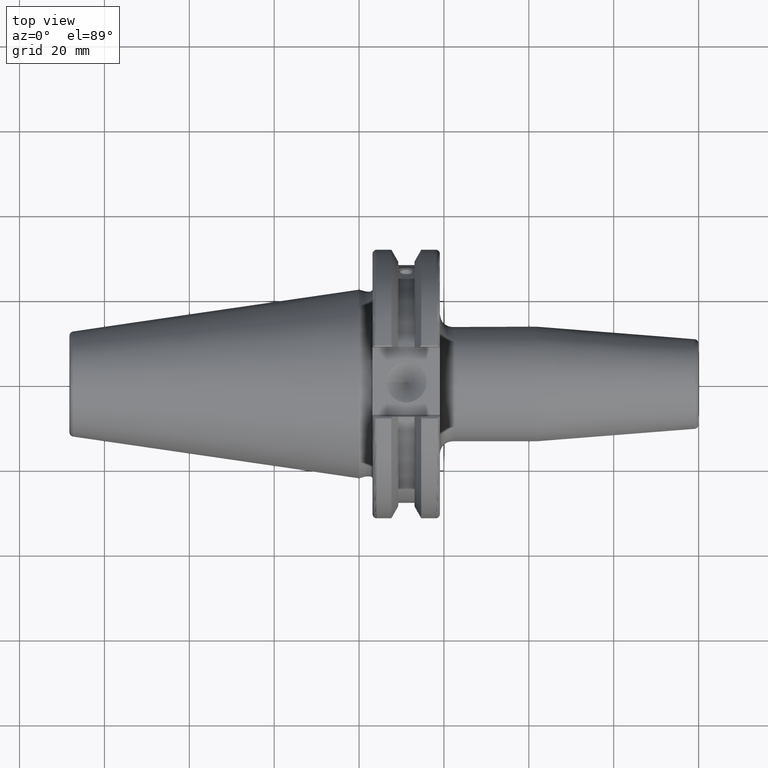
[diagram: clean part render]
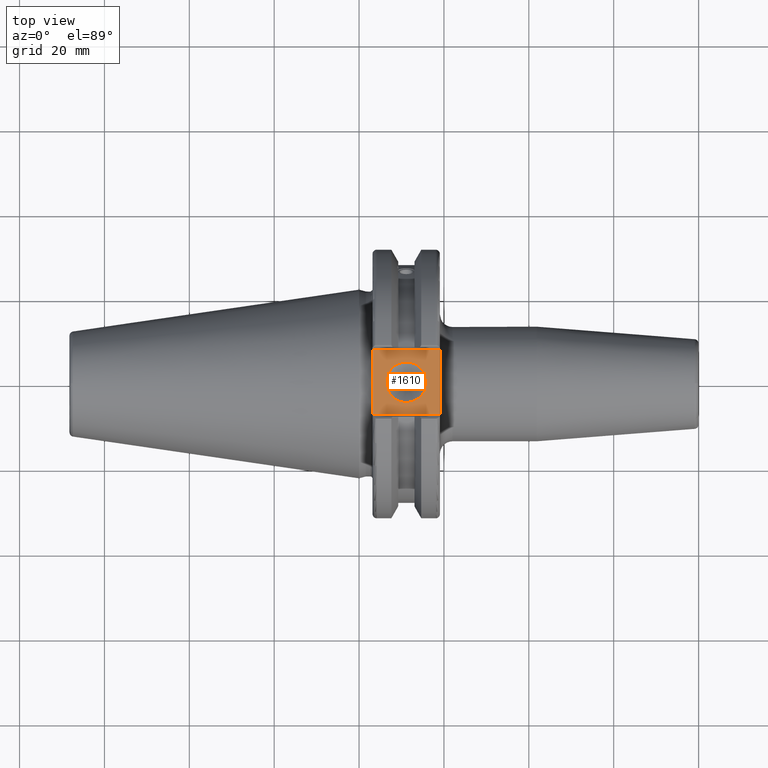
[diagram: same view with one face highlighted and labeled with its STEP entity id]
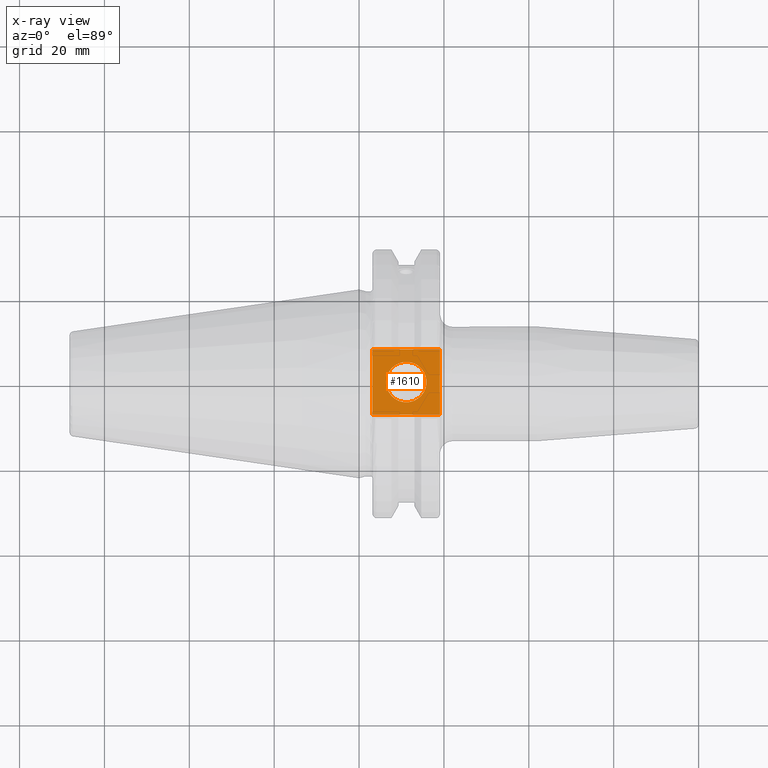
[diagram: x-ray of the same camera — body ghosted, the highlighted face saturated]
A machine part, top view. The second image highlights one B-rep face of the part: STEP entity #1610.
The next image is the same camera in x-ray: the body ghosted, the highlighted face saturated — about 0% of this face is hidden behind the body in this view.
In plain terms, the highlighted planar face has unit normal (0, 0, 1).
Its self-contained STEP definition (entity closure, byte-faithful):
#77=FACE_BOUND('',#365,.T.);
#113=PLANE('',#1816);
#258=FACE_OUTER_BOUND('',#364,.T.);
#364=EDGE_LOOP('',(#1482,#1483,#1484,#1485));
#365=EDGE_LOOP('',(#1486));
#382=LINE('',#2359,#478);
#424=LINE('',#2790,#520);
#452=LINE('',#3019,#548);
#454=LINE('',#3022,#550);
#478=VECTOR('',#1899,10.);
#520=VECTOR('',#2115,10.);
#548=VECTOR('',#2209,10.);
#550=VECTOR('',#2213,10.);
#632=CIRCLE('',#1804,4.7625);
#661=VERTEX_POINT('',#2356);
#662=VERTEX_POINT('',#2358);
#749=VERTEX_POINT('',#2787);
#750=VERTEX_POINT('',#2789);
#796=VERTEX_POINT('',#3058);
#827=EDGE_CURVE('',#661,#662,#382,.T.);
#944=EDGE_CURVE('',#749,#750,#424,.T.);
#1007=EDGE_CURVE('',#662,#749,#452,.T.);
#1009=EDGE_CURVE('',#750,#661,#454,.T.);
#1024=EDGE_CURVE('',#796,#796,#632,.T.);
#1482=ORIENTED_EDGE('',*,*,#1007,.F.);
#1483=ORIENTED_EDGE('',*,*,#827,.F.);
#1484=ORIENTED_EDGE('',*,*,#1009,.F.);
#1485=ORIENTED_EDGE('',*,*,#944,.F.);
#1486=ORIENTED_EDGE('',*,*,#1024,.T.);
#1610=ADVANCED_FACE('',(#258,#77),#113,.T.);
#1804=AXIS2_PLACEMENT_3D('',#3059,#2248,#2249);
#1816=AXIS2_PLACEMENT_3D('',#3072,#2273,#2274);
#1899=DIRECTION('',(0.,-1.,0.));
#2115=DIRECTION('',(0.,1.,0.));
#2209=DIRECTION('',(-1.,1.31581988103722E-16,0.));
#2213=DIRECTION('',(1.,0.,0.));
#2248=DIRECTION('center_axis',(0.,0.,-1.));
#2249=DIRECTION('ref_axis',(1.,0.,0.));
#2273=DIRECTION('center_axis',(0.,0.,1.));
#2274=DIRECTION('ref_axis',(1.,0.,0.));
#2356=CARTESIAN_POINT('',(19.05,7.69,25.));
#2358=CARTESIAN_POINT('',(19.05,-7.69,25.));
#2359=CARTESIAN_POINT('',(19.05,0.,25.));
#2787=CARTESIAN_POINT('',(3.175,-7.68999999999999,25.));
#2789=CARTESIAN_POINT('',(3.175,7.69,25.));
#2790=CARTESIAN_POINT('',(3.175,15.875,25.));
#3019=CARTESIAN_POINT('',(9.44125,-7.69,25.));
#3022=CARTESIAN_POINT('',(17.87875,7.69,25.));
#3058=CARTESIAN_POINT('',(6.3716,-5.83238038093927E-16,25.));
#3059=CARTESIAN_POINT('Origin',(11.1341,0.,25.));
#3072=CARTESIAN_POINT('Origin',(15.7075,0.,25.));